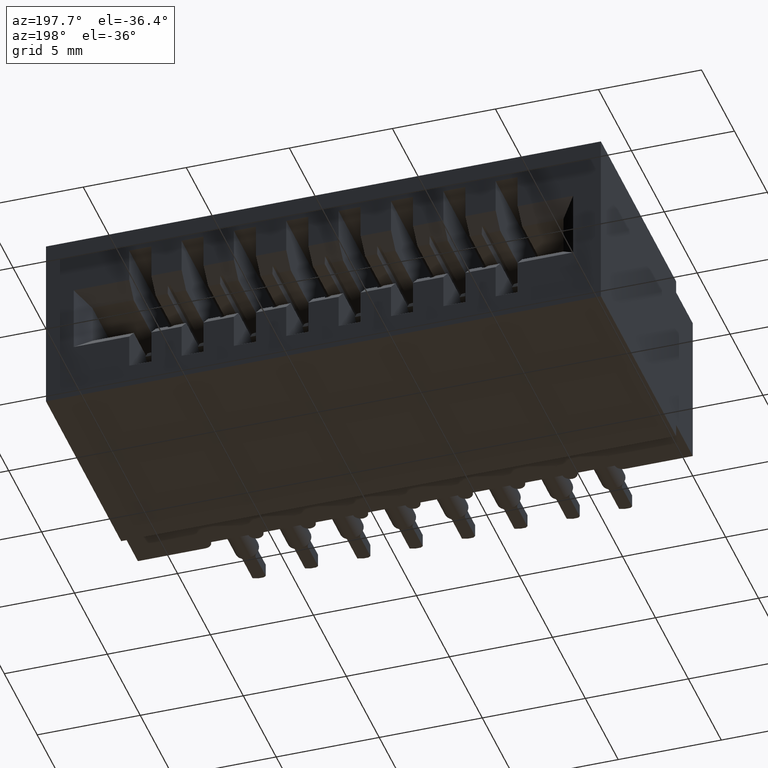
[diagram: clean part render]
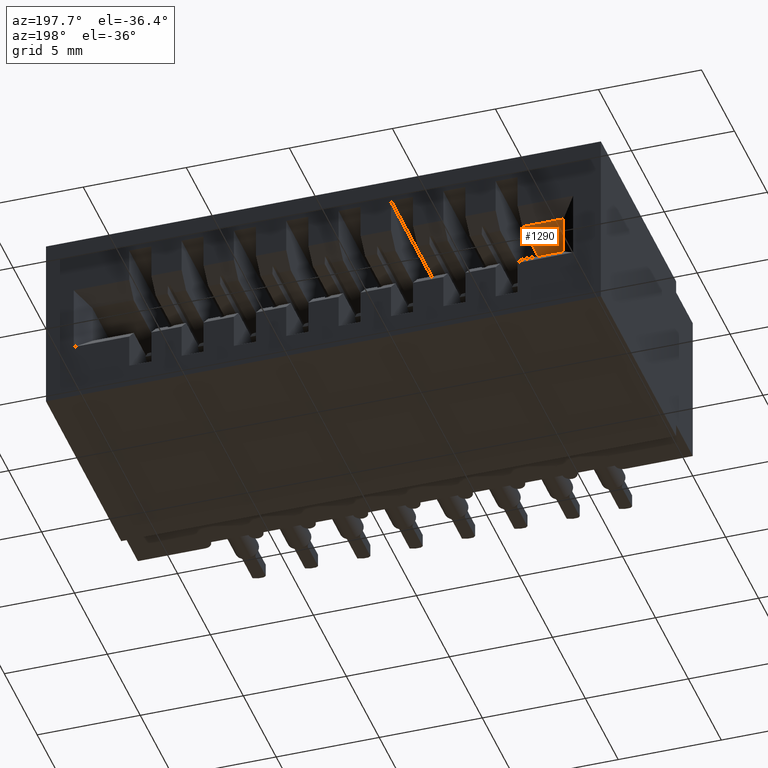
[diagram: same view with one face highlighted and labeled with its STEP entity id]
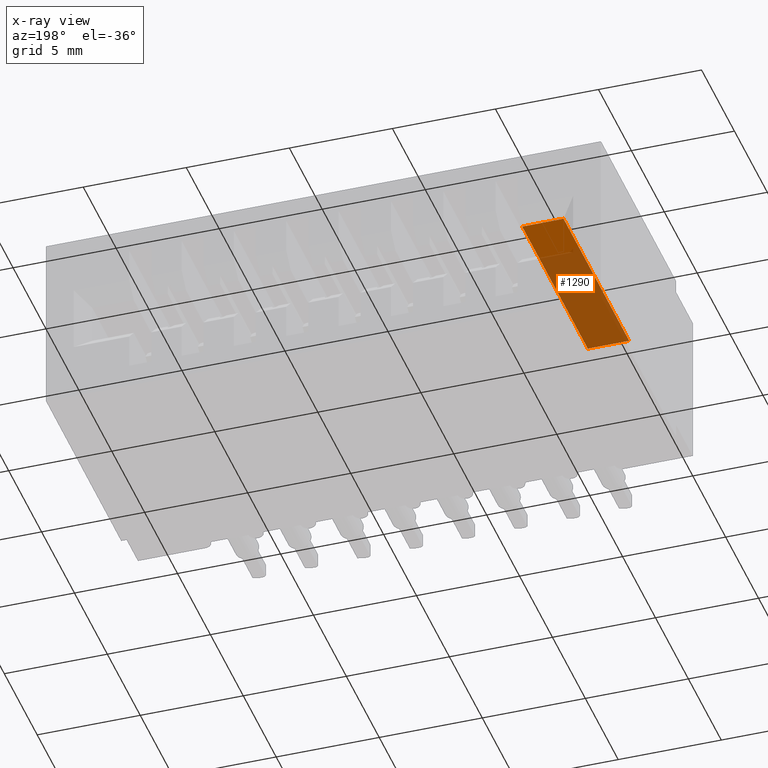
[diagram: x-ray of the same camera — body ghosted, the highlighted face saturated]
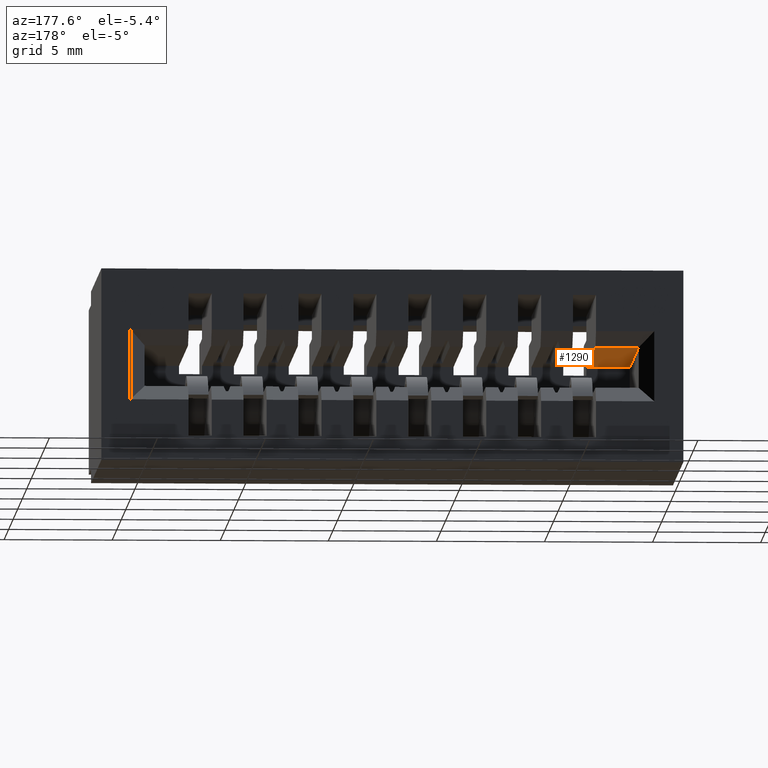
[diagram: same view with one face highlighted and labeled with its STEP entity id]
A machine part, auxiliary view. The second image highlights one B-rep face of the part: STEP entity #1290.
The next image is the same camera in x-ray: the body ghosted, the highlighted face saturated — about 75% of this face is hidden behind the body in this view.
A second angle (auxiliary view) of the same face is appended — the face is thin or edge-on in the first view.
In plain terms, the highlighted planar face has unit normal (0, 0, 1).
Its self-contained STEP definition (entity closure, byte-faithful):
#602 = CARTESIAN_POINT ( 'NONE',  ( 0.9800000000000003200, 0.1300000000000001200, -0.1380000000000002600 ) ) ;
#1290 = ADVANCED_FACE ( 'NONE', ( #2959 ), #15246, .F. ) ;
#1824 = LINE ( 'NONE', #8827, #16041 ) ;
#2243 = DIRECTION ( 'NONE',  ( -0.0000000000000000000, 1.000000000000000000, -0.0000000000000000000 ) ) ;
#2959 = FACE_OUTER_BOUND ( 'NONE', #13348, .T. ) ;
#3576 = CARTESIAN_POINT ( 'NONE',  ( 0.07999999999999969600, 0.1300000000000001200, -0.1380000000000002600 ) ) ;
#3648 = VERTEX_POINT ( 'NONE', #16499 ) ;
#4091 = AXIS2_PLACEMENT_3D ( 'NONE', #12500, #16631, #8436 ) ;
#4435 = VERTEX_POINT ( 'NONE', #7347 ) ;
#4554 = VECTOR ( 'NONE', #2243, 39.37007874015748100 ) ;
#5839 = ORIENTED_EDGE ( 'NONE', *, *, #11150, .F. ) ;
#7347 = CARTESIAN_POINT ( 'NONE',  ( 0.07999999999999969600, 0.1300000000000001200, -0.1380000000000002600 ) ) ;
#8226 = LINE ( 'NONE', #3576, #4554 ) ;
#8436 = DIRECTION ( 'NONE',  ( 1.000000000000000000, 0.0000000000000000000, -0.0000000000000000000 ) ) ;
#8827 = CARTESIAN_POINT ( 'NONE',  ( 0.1589999999999997200, 0.1300000000000001200, -0.1380000000000002600 ) ) ;
#8946 = LINE ( 'NONE', #602, #15600 ) ;
#11150 = EDGE_CURVE ( 'NONE', #12293, #3648, #1824, .T. ) ;
#11795 = EDGE_CURVE ( 'NONE', #3648, #14129, #13427, .T. ) ;
#11833 = EDGE_CURVE ( 'NONE', #4435, #12293, #8946, .T. ) ;
#12133 = ORIENTED_EDGE ( 'NONE', *, *, #11795, .F. ) ;
#12293 = VERTEX_POINT ( 'NONE', #14127 ) ;
#12500 = CARTESIAN_POINT ( 'NONE',  ( 0.9800000000000003200, 0.1300000000000001200, -0.1380000000000002600 ) ) ;
#12888 = DIRECTION ( 'NONE',  ( 1.232595164407830900E-032, 1.000000000000000000, 0.0000000000000000000 ) ) ;
#13090 = DIRECTION ( 'NONE',  ( 1.000000000000000000, -0.0000000000000000000, -0.0000000000000000000 ) ) ;
#13348 = EDGE_LOOP ( 'NONE', ( #5839, #16650, #14773, #12133 ) ) ;
#13427 = LINE ( 'NONE', #15717, #16641 ) ;
#14127 = CARTESIAN_POINT ( 'NONE',  ( 0.1589999999999997200, 0.1300000000000001200, -0.1380000000000002600 ) ) ;
#14129 = VERTEX_POINT ( 'NONE', #15337 ) ;
#14372 = EDGE_CURVE ( 'NONE', #4435, #14129, #8226, .T. ) ;
#14773 = ORIENTED_EDGE ( 'NONE', *, *, #14372, .T. ) ;
#15246 = PLANE ( 'NONE',  #4091 ) ;
#15337 = CARTESIAN_POINT ( 'NONE',  ( 0.07999999999999969600, 0.5230000000000000200, -0.1380000000000002600 ) ) ;
#15600 = VECTOR ( 'NONE', #13090, 39.37007874015748100 ) ;
#15717 = CARTESIAN_POINT ( 'NONE',  ( 1.110816665604960700, 0.5230000000000000200, -0.1379999999999999600 ) ) ;
#16041 = VECTOR ( 'NONE', #12888, 39.37007874015748100 ) ;
#16499 = CARTESIAN_POINT ( 'NONE',  ( 0.1589999999999997200, 0.5230000000000000200, -0.1379999999999999300 ) ) ;
#16631 = DIRECTION ( 'NONE',  ( 0.0000000000000000000, 0.0000000000000000000, 1.000000000000000000 ) ) ;
#16641 = VECTOR ( 'NONE', #17099, 39.37007874015748100 ) ;
#16650 = ORIENTED_EDGE ( 'NONE', *, *, #11833, .F. ) ;
#17099 = DIRECTION ( 'NONE',  ( -1.000000000000000000, 0.0000000000000000000, 0.0000000000000000000 ) ) ;